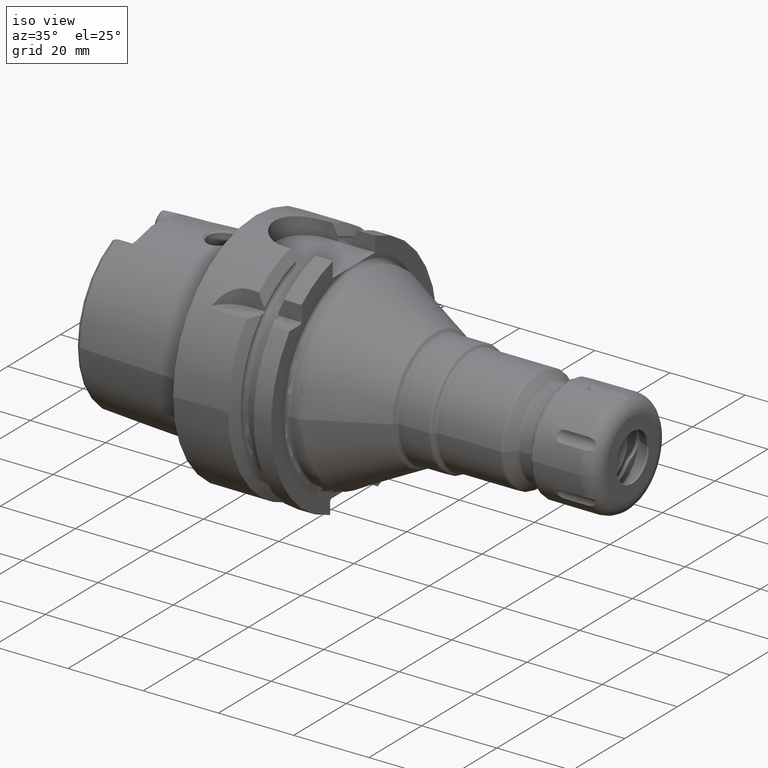
[diagram: clean part render]
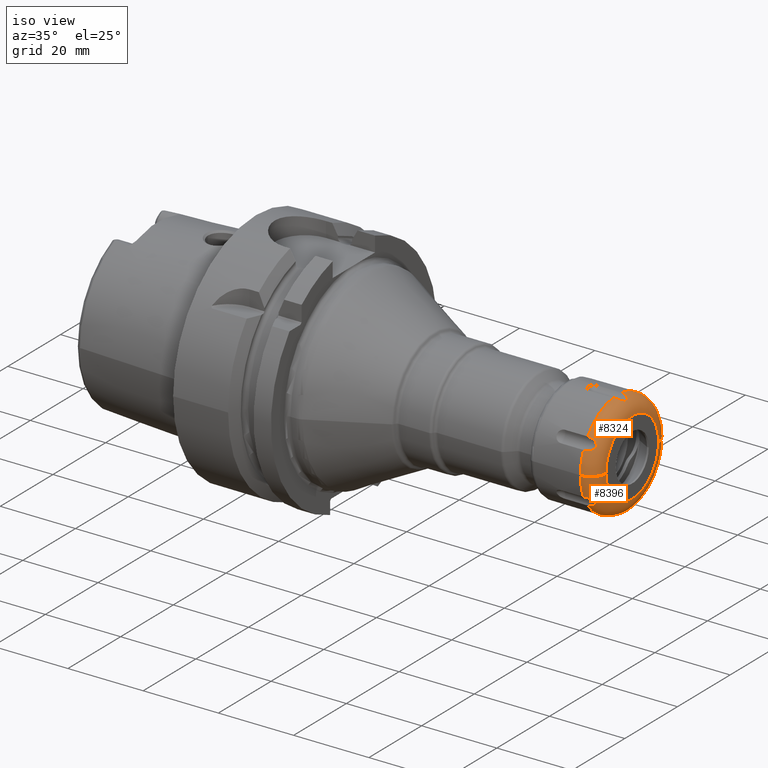
[diagram: same view with one multi-face feature highlighted, each face labeled with its STEP entity id]
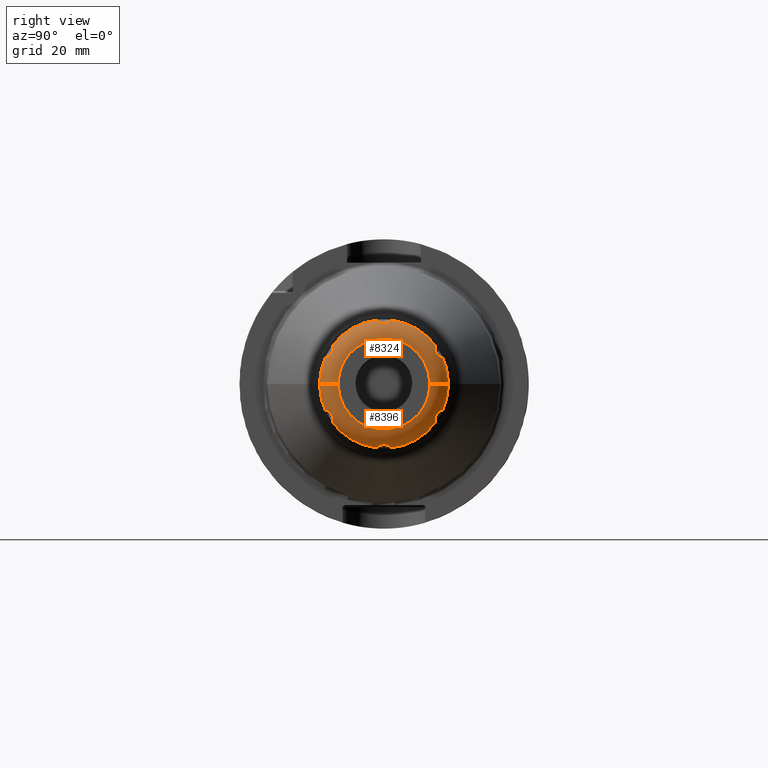
[diagram: same view with one multi-face feature highlighted, each face labeled with its STEP entity id]
A machine part, iso view. The highlighted faces form ONE feature: a constant-radius fillet chain: 2 tangent blend faces with common blend radius 4 mm. The faces share edges in the B-rep.
A second angle (right view) of the same feature is appended — it is thin or edge-on in the first view.
Their STEP definitions:
[1] entity #8324 (Torus):
#7194=CARTESIAN_POINT('',(1.38E1,0.E0,0.E0));
#7195=DIRECTION('',(1.E0,0.E0,0.E0));
#7196=DIRECTION('',(0.E0,-9.155745485918E-1,4.021482885340E-1));
#7197=AXIS2_PLACEMENT_3D('',#7194,#7195,#7196);
#7207=CARTESIAN_POINT('',(1.38E1,0.E0,0.E0));
#7208=DIRECTION('',(1.E0,0.E0,0.E0));
#7209=DIRECTION('',(0.E0,1.E0,0.E0));
#7210=AXIS2_PLACEMENT_3D('',#7207,#7208,#7209);
#7220=CARTESIAN_POINT('',(1.38E1,0.E0,0.E0));
#7221=DIRECTION('',(1.E0,0.E0,0.E0));
#7222=DIRECTION('',(0.E0,8.060579082548E-1,5.918366738720E-1));
#7223=AXIS2_PLACEMENT_3D('',#7220,#7221,#7222);
#7233=CARTESIAN_POINT('',(1.38E1,0.E0,0.E0));
#7234=DIRECTION('',(1.E0,0.E0,0.E0));
#7235=DIRECTION('',(0.E0,-1.095166403370E-1,9.939849624060E-1));
#7236=AXIS2_PLACEMENT_3D('',#7233,#7234,#7235);
#7238=CARTESIAN_POINT('',(1.38E1,-1.128481071557E1,8.285713434208E0));
#7239=CARTESIAN_POINT('',(1.405834375344E1,-1.128481071557E1,8.285713434208E0));
#7240=CARTESIAN_POINT('',(1.453678672260E1,-1.126389014119E1,8.231136180721E0));
#7241=CARTESIAN_POINT('',(1.514657919088E1,-1.120363578828E1,8.026131753548E0));
#7242=CARTESIAN_POINT('',(1.562965251467E1,-1.115717852551E1,7.720699076031E0));
#7243=CARTESIAN_POINT('',(1.597186859633E1,-1.116694111561E1,7.343961226245E0));
#7244=CARTESIAN_POINT('',(1.616184418133E1,-1.125721813461E1,6.952542138942E0));
#7245=CARTESIAN_POINT('',(1.621971625145E1,-1.142185435280E1,6.590621842729E0));
#7246=CARTESIAN_POINT('',(1.615925913558E1,-1.165572045394E1,6.265709745049E0));
#7247=CARTESIAN_POINT('',(1.596590801574E1,-1.195039525653E1,5.993874375771E0));
#7248=CARTESIAN_POINT('',(1.562263506411E1,-1.226993174024E1,5.799746283717E0));
#7249=CARTESIAN_POINT('',(1.514037355855E1,-1.255526733044E1,5.688847229331E0));
#7250=CARTESIAN_POINT('',(1.453307961158E1,-1.276090862932E1,5.639163127098E0));
#7251=CARTESIAN_POINT('',(1.405697011594E1,-1.281804368029E1,5.630076039476E0));
#7252=CARTESIAN_POINT('',(1.38E1,-1.281804368029E1,5.630076039476E0));
#7254=CARTESIAN_POINT('',(1.38E1,1.E1,0.E0));
#7255=DIRECTION('',(0.E0,0.E0,1.E0));
#7256=DIRECTION('',(1.E0,0.E0,0.E0));
#7257=AXIS2_PLACEMENT_3D('',#7254,#7255,#7256);
#7259=CARTESIAN_POINT('',(1.78E1,0.E0,0.E0));
#7260=DIRECTION('',(1.E0,0.E0,0.E0));
#7261=DIRECTION('',(0.E0,1.E0,0.E0));
#7262=AXIS2_PLACEMENT_3D('',#7259,#7260,#7261);
#7264=CARTESIAN_POINT('',(1.38E1,-1.E1,0.E0));
#7265=DIRECTION('',(0.E0,0.E0,-1.E0));
#7266=DIRECTION('',(1.E0,0.E0,0.E0));
#7267=AXIS2_PLACEMENT_3D('',#7264,#7265,#7266);
#7269=CARTESIAN_POINT('',(1.38E1,1.533232964719E0,1.391578947368E1));
#7270=CARTESIAN_POINT('',(1.405658582160E1,1.533232964719E0,1.391578947368E1));
#7271=CARTESIAN_POINT('',(1.453209001643E1,1.496900562084E0,1.387097942740E1));
#7272=CARTESIAN_POINT('',(1.513877871570E1,1.351431460739E0,1.371809851015E1));
#7273=CARTESIAN_POINT('',(1.562128381478E1,1.113273371067E0,1.352660129242E1));
#7274=CARTESIAN_POINT('',(1.596596216781E1,7.844814240003E-1,1.334628921945E1));
#7275=CARTESIAN_POINT('',(1.615984191433E1,4.007681046232E-1,1.322663247882E1));
#7276=CARTESIAN_POINT('',(1.622008797493E1,-2.049827344316E-3,
1.318668042549E1));
#7277=CARTESIAN_POINT('',(1.615980335616E1,-3.992196724656E-1,
1.322664766230E1));
#7278=CARTESIAN_POINT('',(1.596747269113E1,-7.823750585087E-1,
1.334537724789E1));
#7279=CARTESIAN_POINT('',(1.562447259071E1,-1.111033074485E0,1.352510524158E1));
#7280=CARTESIAN_POINT('',(1.514220274580E1,-1.350369919418E0,1.371703658350E1));
#7281=CARTESIAN_POINT('',(1.453416861461E1,-1.496690445340E0,1.387071663501E1));
#7282=CARTESIAN_POINT('',(1.405738116944E1,-1.533232964719E0,1.391578947368E1));
#7283=CARTESIAN_POINT('',(1.38E1,-1.533232964719E0,1.391578947368E1));
#7305=CARTESIAN_POINT('',(1.38E1,1.281804368029E1,5.630076039476E0));
#7306=CARTESIAN_POINT('',(1.405823346902E1,1.281804368029E1,5.630076039476E0));
#7307=CARTESIAN_POINT('',(1.453651109854E1,1.276036736570E1,5.639239372171E0));
#7308=CARTESIAN_POINT('',(1.514623543562E1,1.255280517406E1,5.689523185595E0));
#7309=CARTESIAN_POINT('',(1.562937074227E1,1.226512464119E1,5.801946764054E0));
#7310=CARTESIAN_POINT('',(1.597173068160E1,1.194370517622E1,5.998731895177E0));
#7311=CARTESIAN_POINT('',(1.616183084030E1,1.164974296046E1,6.272688264699E0));
#7312=CARTESIAN_POINT('',(1.621972688911E1,1.141855572214E1,6.596320518028E0));
#7313=CARTESIAN_POINT('',(1.615922953096E1,1.125406891661E1,6.961430944211E0));
#7314=CARTESIAN_POINT('',(1.596574040069E1,1.116600837137E1,7.352671282421E0));
#7315=CARTESIAN_POINT('',(1.562232331379E1,1.115771333407E1,7.726457411099E0));
#7316=CARTESIAN_POINT('',(1.514000632146E1,1.120436079933E1,8.028920377771E0));
#7317=CARTESIAN_POINT('',(1.453279122494E1,1.126413157061E1,8.231737512380E0));
#7318=CARTESIAN_POINT('',(1.405685530204E1,1.128481071557E1,8.285713434208E0));
#7319=CARTESIAN_POINT('',(1.38E1,1.128481071557E1,8.285713434208E0));
#8041=CARTESIAN_POINT('',(1.78E1,1.E1,0.E0));
#8042=CARTESIAN_POINT('',(1.38E1,1.4E1,0.E0));
#8043=VERTEX_POINT('',#8041);
#8044=VERTEX_POINT('',#8042);
#8051=CARTESIAN_POINT('',(1.78E1,-1.E1,0.E0));
#8052=CARTESIAN_POINT('',(1.38E1,-1.4E1,0.E0));
#8053=VERTEX_POINT('',#8051);
#8054=VERTEX_POINT('',#8052);
#8071=CARTESIAN_POINT('',(1.38E1,1.281804368029E1,5.630076039476E0));
#8073=VERTEX_POINT('',#8071);
#8075=CARTESIAN_POINT('',(1.38E1,1.128481071557E1,8.285713434208E0));
#8077=VERTEX_POINT('',#8075);
#8079=CARTESIAN_POINT('',(1.38E1,1.533232964719E0,1.391578947368E1));
#8081=VERTEX_POINT('',#8079);
#8083=CARTESIAN_POINT('',(1.38E1,-1.533232964719E0,1.391578947368E1));
#8085=VERTEX_POINT('',#8083);
#8087=CARTESIAN_POINT('',(1.38E1,-1.128481071557E1,8.285713434208E0));
#8089=VERTEX_POINT('',#8087);
#8091=CARTESIAN_POINT('',(1.38E1,-1.281804368029E1,5.630076039476E0));
#8093=VERTEX_POINT('',#8091);
#8302=CARTESIAN_POINT('',(1.38E1,0.E0,0.E0));
#8303=DIRECTION('',(-1.E0,0.E0,0.E0));
#8304=DIRECTION('',(0.E0,1.E0,0.E0));
#8305=AXIS2_PLACEMENT_3D('',#8302,#8303,#8304);
#8306=TOROIDAL_SURFACE('',#8305,1.E1,4.E0);
#8307=ORIENTED_EDGE('',*,*,#8293,.F.);
#8308=ORIENTED_EDGE('',*,*,#8283,.F.);
#8310=ORIENTED_EDGE('',*,*,#8309,.F.);
#8311=ORIENTED_EDGE('',*,*,#8275,.F.);
#8313=ORIENTED_EDGE('',*,*,#8312,.F.);
#8314=ORIENTED_EDGE('',*,*,#8267,.F.);
#8316=ORIENTED_EDGE('',*,*,#8315,.F.);
#8318=ORIENTED_EDGE('',*,*,#8317,.T.);
#8320=ORIENTED_EDGE('',*,*,#8319,.T.);
#8321=ORIENTED_EDGE('',*,*,#8260,.F.);
#8322=EDGE_LOOP('',(#8307,#8308,#8310,#8311,#8313,#8314,#8316,#8318,#8320,
#8321));
#8323=FACE_OUTER_BOUND('',#8322,.F.);
#8324=ADVANCED_FACE('',(#8323),#8306,.T.);
#7198=CIRCLE('',#7197,1.4E1);
#7211=CIRCLE('',#7210,1.4E1);
#7224=CIRCLE('',#7223,1.4E1);
#7237=CIRCLE('',#7236,1.4E1);
#7253=B_SPLINE_CURVE_WITH_KNOTS('',3,(#7238,#7239,#7240,#7241,#7242,#7243,#7244,
#7245,#7246,#7247,#7248,#7249,#7250,#7251,#7252),.UNSPECIFIED.,.F.,.F.,(4,1,1,1,
1,1,1,1,1,1,1,1,4),(0.E0,8.333333333333E-2,1.666666666667E-1,2.5E-1,
3.333333333333E-1,4.166666666667E-1,5.E-1,5.833333333333E-1,6.666666666667E-1,
7.5E-1,8.333333333333E-1,9.166666666667E-1,1.E0),.UNSPECIFIED.);
#7258=CIRCLE('',#7257,4.E0);
#7263=CIRCLE('',#7262,1.E1);
#7268=CIRCLE('',#7267,4.E0);
#7284=B_SPLINE_CURVE_WITH_KNOTS('',3,(#7269,#7270,#7271,#7272,#7273,#7274,#7275,
#7276,#7277,#7278,#7279,#7280,#7281,#7282,#7283),.UNSPECIFIED.,.F.,.F.,(4,1,1,1,
1,1,1,1,1,1,1,1,4),(0.E0,8.333333333333E-2,1.666666666667E-1,2.5E-1,
3.333333333333E-1,4.166666666667E-1,5.E-1,5.833333333333E-1,6.666666666667E-1,
7.5E-1,8.333333333333E-1,9.166666666667E-1,1.E0),.UNSPECIFIED.);
#7320=B_SPLINE_CURVE_WITH_KNOTS('',3,(#7305,#7306,#7307,#7308,#7309,#7310,#7311,
#7312,#7313,#7314,#7315,#7316,#7317,#7318,#7319),.UNSPECIFIED.,.F.,.F.,(4,1,1,1,
1,1,1,1,1,1,1,1,4),(0.E0,8.333333333333E-2,1.666666666667E-1,2.5E-1,
3.333333333333E-1,4.166666666667E-1,5.E-1,5.833333333333E-1,6.666666666667E-1,
7.5E-1,8.333333333333E-1,9.166666666667E-1,1.E0),.UNSPECIFIED.);
#8260=EDGE_CURVE('',#8093,#8054,#7198,.T.);
#8267=EDGE_CURVE('',#8044,#8073,#7211,.T.);
#8275=EDGE_CURVE('',#8077,#8081,#7224,.T.);
#8283=EDGE_CURVE('',#8085,#8089,#7237,.T.);
#8293=EDGE_CURVE('',#8089,#8093,#7253,.T.);
#8309=EDGE_CURVE('',#8081,#8085,#7284,.T.);
#8312=EDGE_CURVE('',#8073,#8077,#7320,.T.);
#8315=EDGE_CURVE('',#8043,#8044,#7258,.T.);
#8317=EDGE_CURVE('',#8043,#8053,#7263,.T.);
#8319=EDGE_CURVE('',#8053,#8054,#7268,.T.);
[2] entity #8396 (Torus):
#7254=CARTESIAN_POINT('',(1.38E1,1.E1,0.E0));
#7255=DIRECTION('',(0.E0,0.E0,1.E0));
#7256=DIRECTION('',(1.E0,0.E0,0.E0));
#7257=AXIS2_PLACEMENT_3D('',#7254,#7255,#7256);
#7264=CARTESIAN_POINT('',(1.38E1,-1.E1,0.E0));
#7265=DIRECTION('',(0.E0,0.E0,-1.E0));
#7266=DIRECTION('',(1.E0,0.E0,0.E0));
#7267=AXIS2_PLACEMENT_3D('',#7264,#7265,#7266);
#7341=CARTESIAN_POINT('',(1.78E1,0.E0,0.E0));
#7342=DIRECTION('',(-1.E0,0.E0,0.E0));
#7343=DIRECTION('',(0.E0,1.E0,0.E0));
#7344=AXIS2_PLACEMENT_3D('',#7341,#7342,#7343);
#7346=CARTESIAN_POINT('',(1.38E1,-1.281804368029E1,-5.630076039476E0));
#7347=CARTESIAN_POINT('',(1.405834375344E1,-1.281804368029E1,
-5.630076039476E0));
#7348=CARTESIAN_POINT('',(1.453678672260E1,-1.276031810511E1,
-5.639246917348E0));
#7349=CARTESIAN_POINT('',(1.514657919088E1,-1.255265188683E1,
-5.689567330627E0));
#7350=CARTESIAN_POINT('',(1.562965251467E1,-1.226491079757E1,
-5.802050499630E0));
#7351=CARTESIAN_POINT('',(1.597186859633E1,-1.194352754414E1,
-5.998874075561E0));
#7352=CARTESIAN_POINT('',(1.616184418133E1,-1.164968718051E1,
-6.272765811043E0));
#7353=CARTESIAN_POINT('',(1.621971625145E1,-1.141857311894E1,
-6.596305106486E0));
#7354=CARTESIAN_POINT('',(1.615925913558E1,-1.125412403892E1,-6.96129514E0));
#7355=CARTESIAN_POINT('',(1.596590801574E1,-1.116604510477E1,
-7.352408689530E0));
#7356=CARTESIAN_POINT('',(1.562263506411E1,-1.115769348732E1,
-7.726199447888E0));
#7357=CARTESIAN_POINT('',(1.514037355855E1,-1.120431988407E1,
-8.028756844804E0));
#7358=CARTESIAN_POINT('',(1.453307961158E1,-1.126411283881E1,
-8.231689484814E0));
#7359=CARTESIAN_POINT('',(1.405697011594E1,-1.128481071557E1,
-8.285713434208E0));
#7360=CARTESIAN_POINT('',(1.38E1,-1.128481071557E1,-8.285713434208E0));
#7370=CARTESIAN_POINT('',(1.38E1,0.E0,0.E0));
#7371=DIRECTION('',(-1.E0,0.E0,0.E0));
#7372=DIRECTION('',(0.E0,-1.095166403370E-1,-9.939849624060E-1));
#7373=AXIS2_PLACEMENT_3D('',#7370,#7371,#7372);
#7383=CARTESIAN_POINT('',(1.38E1,0.E0,0.E0));
#7384=DIRECTION('',(-1.E0,0.E0,0.E0));
#7385=DIRECTION('',(0.E0,8.060579082548E-1,-5.918366738720E-1));
#7386=AXIS2_PLACEMENT_3D('',#7383,#7384,#7385);
#7396=CARTESIAN_POINT('',(1.38E1,0.E0,0.E0));
#7397=DIRECTION('',(-1.E0,0.E0,0.E0));
#7398=DIRECTION('',(0.E0,1.E0,0.E0));
#7399=AXIS2_PLACEMENT_3D('',#7396,#7397,#7398);
#7401=CARTESIAN_POINT('',(1.38E1,0.E0,0.E0));
#7402=DIRECTION('',(-1.E0,0.E0,0.E0));
#7403=DIRECTION('',(0.E0,-9.155745485919E-1,-4.021482885340E-1));
#7404=AXIS2_PLACEMENT_3D('',#7401,#7402,#7403);
#7426=CARTESIAN_POINT('',(1.38E1,-1.533232964719E0,-1.391578947368E1));
#7427=CARTESIAN_POINT('',(1.405646451963E1,-1.533232964719E0,
-1.391578947368E1));
#7428=CARTESIAN_POINT('',(1.453178299669E1,-1.496934439837E0,
-1.387102181385E1));
#7429=CARTESIAN_POINT('',(1.513837588869E1,-1.351563153691E0,
-1.371822622364E1));
#7430=CARTESIAN_POINT('',(1.562092454060E1,-1.113515158871E0,
-1.352676841268E1));
#7431=CARTESIAN_POINT('',(1.596574136665E1,-7.847919291859E-1,
-1.334641908353E1));
#7432=CARTESIAN_POINT('',(1.615978631159E1,-4.010051566998E-1,
-1.322666976883E1));
#7433=CARTESIAN_POINT('',(1.622010340097E1,1.985398637003E-3,
-1.318666986550E1));
#7434=CARTESIAN_POINT('',(1.615979760295E1,3.992917796739E-1,
-1.322665238544E1));
#7435=CARTESIAN_POINT('',(1.596734456995E1,7.825717194300E-1,
-1.334545409375E1));
#7436=CARTESIAN_POINT('',(1.562420775820E1,1.111216737403E0,-1.352523022687E1));
#7437=CARTESIAN_POINT('',(1.514187638984E1,1.350478739788E0,-1.371714142321E1));
#7438=CARTESIAN_POINT('',(1.453390554349E1,1.496720107930E0,-1.387075366802E1));
#7439=CARTESIAN_POINT('',(1.405727576987E1,1.533232964719E0,-1.391578947368E1));
#7440=CARTESIAN_POINT('',(1.38E1,1.533232964719E0,-1.391578947368E1));
#7462=CARTESIAN_POINT('',(1.38E1,1.128481071557E1,-8.285713434208E0));
#7463=CARTESIAN_POINT('',(1.405823346902E1,1.128481071557E1,-8.285713434208E0));
#7464=CARTESIAN_POINT('',(1.453651109854E1,1.126390823717E1,-8.231182614232E0));
#7465=CARTESIAN_POINT('',(1.514623543562E1,1.120367420118E1,-8.026286576697E0));
#7466=CARTESIAN_POINT('',(1.562937074227E1,1.115719560967E1,-7.720936137824E0));
#7467=CARTESIAN_POINT('',(1.597173068160E1,1.116690679982E1,-7.344186150326E0));
#7468=CARTESIAN_POINT('',(1.616183084030E1,1.125717886748E1,-6.952629218969E0));
#7469=CARTESIAN_POINT('',(1.621972688911E1,1.142185900119E1,-6.590599070888E0));
#7470=CARTESIAN_POINT('',(1.615922953096E1,1.165581050268E1,-6.265594105618E0));
#7471=CARTESIAN_POINT('',(1.596574040069E1,1.195060430194E1,-5.993711267268E0));
#7472=CARTESIAN_POINT('',(1.562232331379E1,1.227016506630E1,-5.799634489897E0));
#7473=CARTESIAN_POINT('',(1.514000632146E1,1.255542941178E1,-5.688800896501E0));
#7474=CARTESIAN_POINT('',(1.453279122494E1,1.276095958831E1,-5.639155335531E0));
#7475=CARTESIAN_POINT('',(1.405685530204E1,1.281804368029E1,-5.630076039476E0));
#7476=CARTESIAN_POINT('',(1.38E1,1.281804368029E1,-5.630076039476E0));
#8041=CARTESIAN_POINT('',(1.78E1,1.E1,0.E0));
#8042=CARTESIAN_POINT('',(1.38E1,1.4E1,0.E0));
#8043=VERTEX_POINT('',#8041);
#8044=VERTEX_POINT('',#8042);
#8051=CARTESIAN_POINT('',(1.78E1,-1.E1,0.E0));
#8052=CARTESIAN_POINT('',(1.38E1,-1.4E1,0.E0));
#8053=VERTEX_POINT('',#8051);
#8054=VERTEX_POINT('',#8052);
#8055=CARTESIAN_POINT('',(1.38E1,-1.533232964719E0,-1.391578947368E1));
#8057=VERTEX_POINT('',#8055);
#8059=CARTESIAN_POINT('',(1.38E1,1.533232964719E0,-1.391578947368E1));
#8061=VERTEX_POINT('',#8059);
#8063=CARTESIAN_POINT('',(1.38E1,1.128481071557E1,-8.285713434208E0));
#8065=VERTEX_POINT('',#8063);
#8067=CARTESIAN_POINT('',(1.38E1,1.281804368029E1,-5.630076039476E0));
#8069=VERTEX_POINT('',#8067);
#8095=CARTESIAN_POINT('',(1.38E1,-1.281804368029E1,-5.630076039476E0));
#8097=VERTEX_POINT('',#8095);
#8099=CARTESIAN_POINT('',(1.38E1,-1.128481071557E1,-8.285713434208E0));
#8101=VERTEX_POINT('',#8099);
#8371=CARTESIAN_POINT('',(1.38E1,0.E0,0.E0));
#8372=DIRECTION('',(-1.E0,0.E0,0.E0));
#8373=DIRECTION('',(0.E0,1.E0,0.E0));
#8374=AXIS2_PLACEMENT_3D('',#8371,#8372,#8373);
#8375=TOROIDAL_SURFACE('',#8374,1.E1,4.E0);
#8377=ORIENTED_EDGE('',*,*,#8376,.F.);
#8379=ORIENTED_EDGE('',*,*,#8378,.T.);
#8380=ORIENTED_EDGE('',*,*,#8319,.F.);
#8382=ORIENTED_EDGE('',*,*,#8381,.F.);
#8383=ORIENTED_EDGE('',*,*,#8315,.T.);
#8385=ORIENTED_EDGE('',*,*,#8384,.T.);
#8387=ORIENTED_EDGE('',*,*,#8386,.F.);
#8389=ORIENTED_EDGE('',*,*,#8388,.T.);
#8391=ORIENTED_EDGE('',*,*,#8390,.F.);
#8393=ORIENTED_EDGE('',*,*,#8392,.T.);
#8394=EDGE_LOOP('',(#8377,#8379,#8380,#8382,#8383,#8385,#8387,#8389,#8391,
#8393));
#8395=FACE_OUTER_BOUND('',#8394,.F.);
#8396=ADVANCED_FACE('',(#8395),#8375,.T.);
#7258=CIRCLE('',#7257,4.E0);
#7268=CIRCLE('',#7267,4.E0);
#7345=CIRCLE('',#7344,1.E1);
#7361=B_SPLINE_CURVE_WITH_KNOTS('',3,(#7346,#7347,#7348,#7349,#7350,#7351,#7352,
#7353,#7354,#7355,#7356,#7357,#7358,#7359,#7360),.UNSPECIFIED.,.F.,.F.,(4,1,1,1,
1,1,1,1,1,1,1,1,4),(0.E0,8.333333333333E-2,1.666666666667E-1,2.5E-1,
3.333333333333E-1,4.166666666667E-1,5.E-1,5.833333333333E-1,6.666666666667E-1,
7.5E-1,8.333333333333E-1,9.166666666667E-1,1.E0),.UNSPECIFIED.);
#7374=CIRCLE('',#7373,1.4E1);
#7387=CIRCLE('',#7386,1.4E1);
#7400=CIRCLE('',#7399,1.4E1);
#7405=CIRCLE('',#7404,1.4E1);
#7441=B_SPLINE_CURVE_WITH_KNOTS('',3,(#7426,#7427,#7428,#7429,#7430,#7431,#7432,
#7433,#7434,#7435,#7436,#7437,#7438,#7439,#7440),.UNSPECIFIED.,.F.,.F.,(4,1,1,1,
1,1,1,1,1,1,1,1,4),(0.E0,8.333333333333E-2,1.666666666667E-1,2.5E-1,
3.333333333333E-1,4.166666666667E-1,5.E-1,5.833333333333E-1,6.666666666667E-1,
7.5E-1,8.333333333333E-1,9.166666666667E-1,1.E0),.UNSPECIFIED.);
#7477=B_SPLINE_CURVE_WITH_KNOTS('',3,(#7462,#7463,#7464,#7465,#7466,#7467,#7468,
#7469,#7470,#7471,#7472,#7473,#7474,#7475,#7476),.UNSPECIFIED.,.F.,.F.,(4,1,1,1,
1,1,1,1,1,1,1,1,4),(0.E0,8.333333333333E-2,1.666666666667E-1,2.5E-1,
3.333333333333E-1,4.166666666667E-1,5.E-1,5.833333333333E-1,6.666666666667E-1,
7.5E-1,8.333333333333E-1,9.166666666667E-1,1.E0),.UNSPECIFIED.);
#8315=EDGE_CURVE('',#8043,#8044,#7258,.T.);
#8319=EDGE_CURVE('',#8053,#8054,#7268,.T.);
#8376=EDGE_CURVE('',#8097,#8101,#7361,.T.);
#8378=EDGE_CURVE('',#8097,#8054,#7405,.T.);
#8381=EDGE_CURVE('',#8043,#8053,#7345,.T.);
#8384=EDGE_CURVE('',#8044,#8069,#7400,.T.);
#8386=EDGE_CURVE('',#8065,#8069,#7477,.T.);
#8388=EDGE_CURVE('',#8065,#8061,#7387,.T.);
#8390=EDGE_CURVE('',#8057,#8061,#7441,.T.);
#8392=EDGE_CURVE('',#8057,#8101,#7374,.T.);